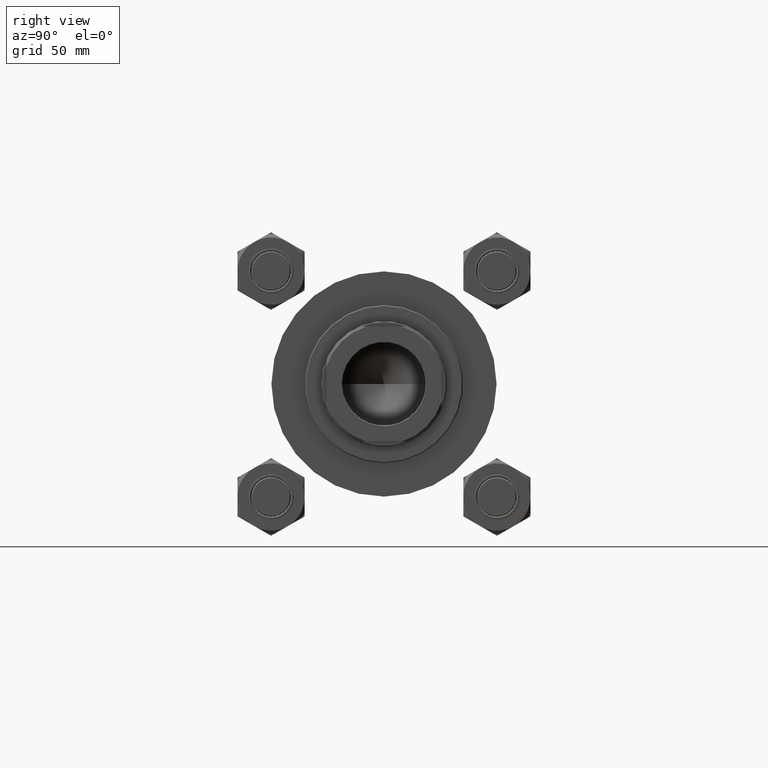
[diagram: clean part render]
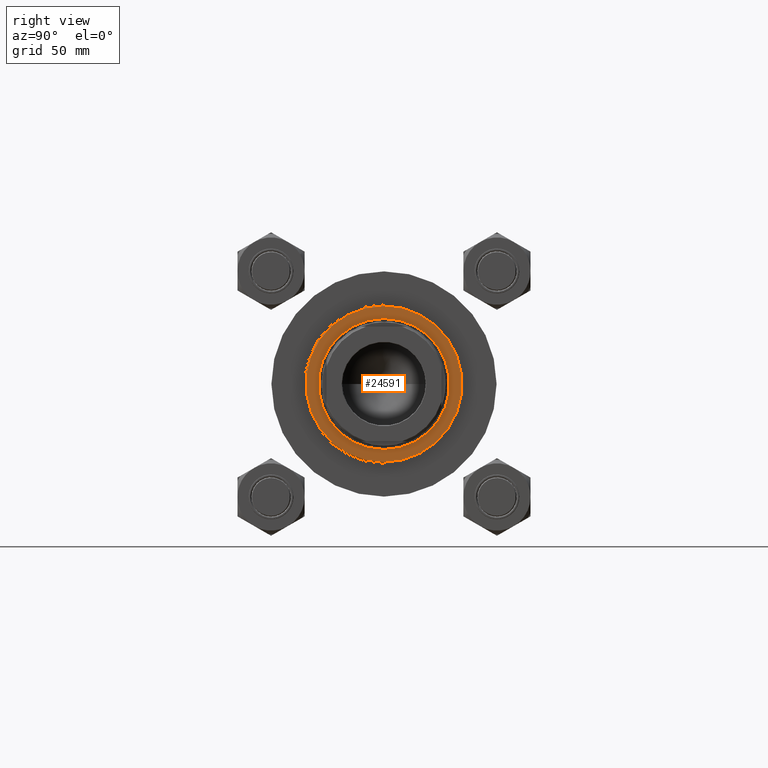
[diagram: same view with one face highlighted and labeled with its STEP entity id]
A machine part, right view. The second image highlights one B-rep face of the part: STEP entity #24591.
In plain terms, the highlighted planar face has unit normal (1, 0, -0).
Its self-contained STEP definition (entity closure, byte-faithful):
#68 = DIRECTION ( 'NONE',  ( 0.000000000000000000, 0.000000000000000000, 1.000000000000000000 ) ) ;
#617 = DIRECTION ( 'NONE',  ( 1.000000000000000000, 0.000000000000000000, 0.000000000000000000 ) ) ;
#3044 = AXIS2_PLACEMENT_3D ( 'NONE', #38959, #18886, #15573 ) ;
#4172 = AXIS2_PLACEMENT_3D ( 'NONE', #42395, #8071, #7815 ) ;
#4834 = VERTEX_POINT ( 'NONE', #25856 ) ;
#5132 = PLANE ( 'NONE',  #30613 ) ;
#7143 = ORIENTED_EDGE ( 'NONE', *, *, #39319, .F. ) ;
#7815 = DIRECTION ( 'NONE',  ( 1.000000000000000000, 0.000000000000000000, 0.000000000000000000 ) ) ;
#8071 = DIRECTION ( 'NONE',  ( 0.000000000000000000, 0.000000000000000000, 1.000000000000000000 ) ) ;
#10457 = CARTESIAN_POINT ( 'NONE',  ( 36.50000000000000000, 0.000000000000000000, 38.69999999999999574 ) ) ;
#14452 = AXIS2_PLACEMENT_3D ( 'NONE', #20199, #36207, #617 ) ;
#15573 = DIRECTION ( 'NONE',  ( 1.000000000000000000, 0.000000000000000000, 0.000000000000000000 ) ) ;
#16084 = DIRECTION ( 'NONE',  ( 0.000000000000000000, 0.000000000000000000, 1.000000000000000000 ) ) ;
#16161 = EDGE_LOOP ( 'NONE', ( #39383, #29777 ) ) ;
#18886 = DIRECTION ( 'NONE',  ( 0.000000000000000000, 0.000000000000000000, 1.000000000000000000 ) ) ;
#19399 = VERTEX_POINT ( 'NONE', #10457 ) ;
#20199 = CARTESIAN_POINT ( 'NONE',  ( 0.000000000000000000, 0.000000000000000000, 38.69999999999999574 ) ) ;
#20645 = CARTESIAN_POINT ( 'NONE',  ( 0.000000000000000000, 0.000000000000000000, 38.69999999999999574 ) ) ;
#21729 = CIRCLE ( 'NONE', #3044, 43.50000000000001421 ) ;
#23480 = DIRECTION ( 'NONE',  ( 1.000000000000000000, 0.000000000000000000, 0.000000000000000000 ) ) ;
#24473 = FACE_BOUND ( 'NONE', #27911, .T. ) ;
#24591 = ADVANCED_FACE ( 'NONE', ( #24473, #39978 ), #5132, .T. ) ;
#25003 = CIRCLE ( 'NONE', #14452, 36.50000000000000000 ) ;
#25033 = CIRCLE ( 'NONE', #37242, 43.50000000000001421 ) ;
#25856 = CARTESIAN_POINT ( 'NONE',  ( -43.50000000000001421, 0.000000000000000000, 38.69999999999999574 ) ) ;
#26029 = EDGE_CURVE ( 'NONE', #31095, #4834, #21729, .T. ) ;
#27911 = EDGE_LOOP ( 'NONE', ( #7143, #28992 ) ) ;
#28992 = ORIENTED_EDGE ( 'NONE', *, *, #43857, .F. ) ;
#29777 = ORIENTED_EDGE ( 'NONE', *, *, #26029, .T. ) ;
#30613 = AXIS2_PLACEMENT_3D ( 'NONE', #20645, #68, #31115 ) ;
#31095 = VERTEX_POINT ( 'NONE', #43967 ) ;
#31115 = DIRECTION ( 'NONE',  ( 1.000000000000000000, 0.000000000000000000, -0.000000000000000000 ) ) ;
#31206 = CARTESIAN_POINT ( 'NONE',  ( -36.50000000000000000, 4.469960816887838430E-15, 38.69999999999999574 ) ) ;
#34922 = VERTEX_POINT ( 'NONE', #31206 ) ;
#35822 = CIRCLE ( 'NONE', #4172, 36.50000000000000000 ) ;
#36207 = DIRECTION ( 'NONE',  ( 0.000000000000000000, 0.000000000000000000, 1.000000000000000000 ) ) ;
#37242 = AXIS2_PLACEMENT_3D ( 'NONE', #47096, #16084, #23480 ) ;
#38959 = CARTESIAN_POINT ( 'NONE',  ( 0.000000000000000000, 0.000000000000000000, 38.69999999999999574 ) ) ;
#39319 = EDGE_CURVE ( 'NONE', #19399, #34922, #35822, .T. ) ;
#39383 = ORIENTED_EDGE ( 'NONE', *, *, #45223, .T. ) ;
#39978 = FACE_OUTER_BOUND ( 'NONE', #16161, .T. ) ;
#42395 = CARTESIAN_POINT ( 'NONE',  ( 0.000000000000000000, 0.000000000000000000, 38.69999999999999574 ) ) ;
#43857 = EDGE_CURVE ( 'NONE', #34922, #19399, #25003, .T. ) ;
#43967 = CARTESIAN_POINT ( 'NONE',  ( 43.50000000000001421, 5.357829746269670620E-15, 38.69999999999999574 ) ) ;
#45223 = EDGE_CURVE ( 'NONE', #4834, #31095, #25033, .T. ) ;
#47096 = CARTESIAN_POINT ( 'NONE',  ( 0.000000000000000000, 0.000000000000000000, 38.69999999999999574 ) ) ;